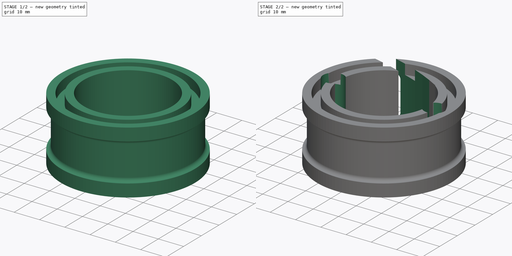
[diagram: build sequence overview — one tinted view per stage of 2, left to right]
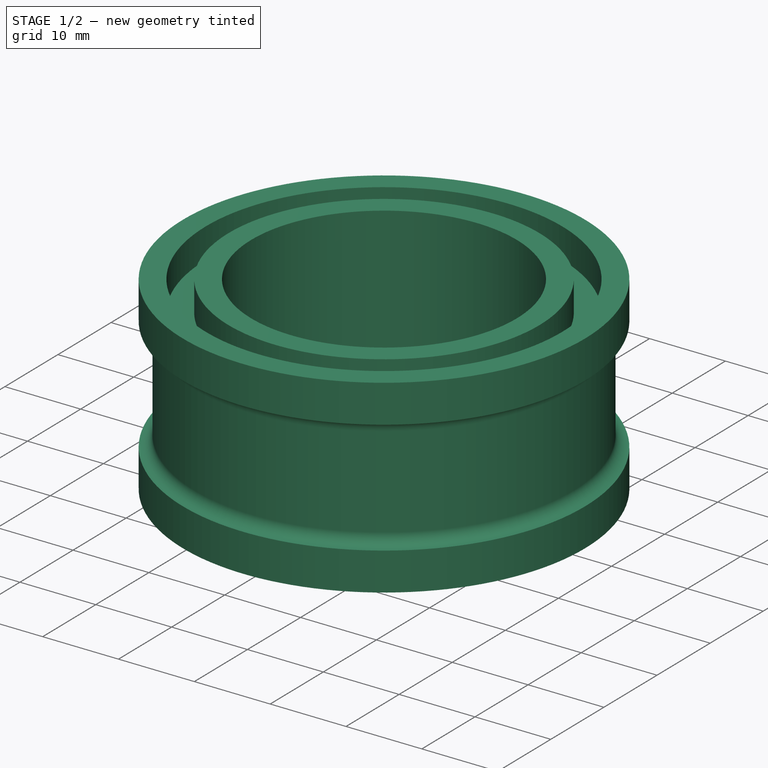
[diagram: stage 1 of 2 — iso view after this stage's code; geometry added in this stage tinted green]
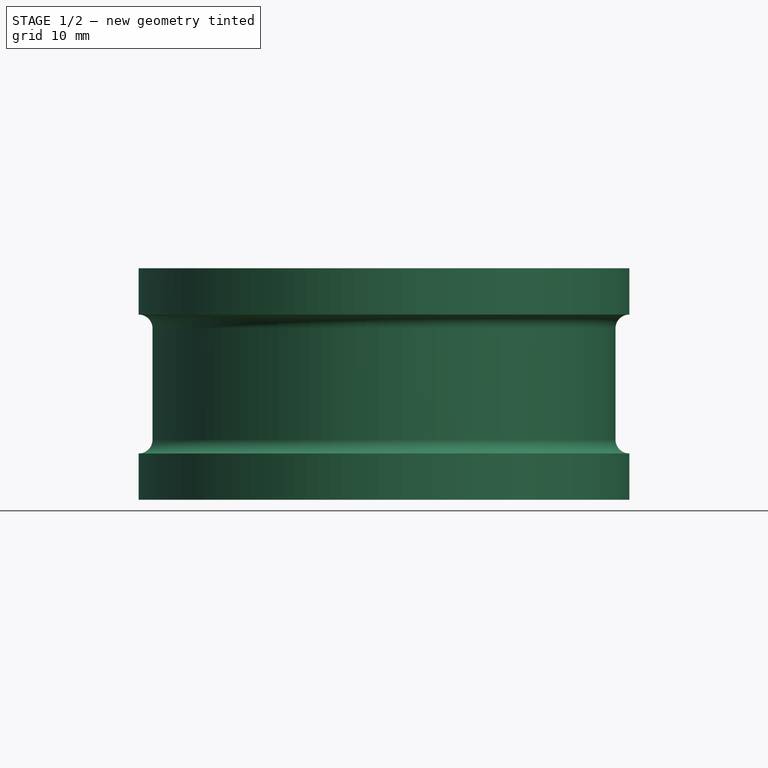
[diagram: stage 1 of 2 — front view after this stage's code; geometry added in this stage tinted green]
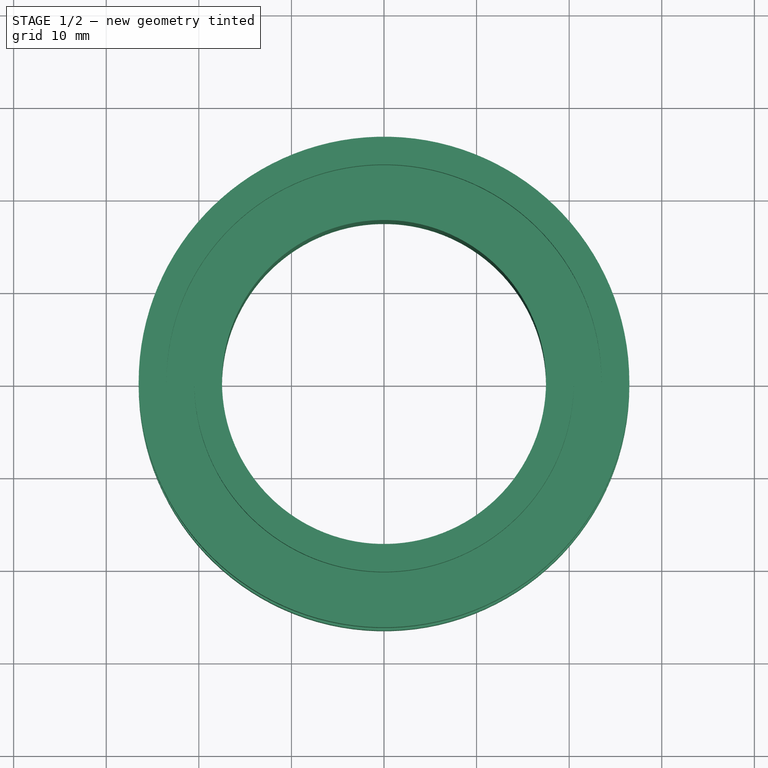
[diagram: stage 1 of 2 — top view after this stage's code; geometry added in this stage tinted green]
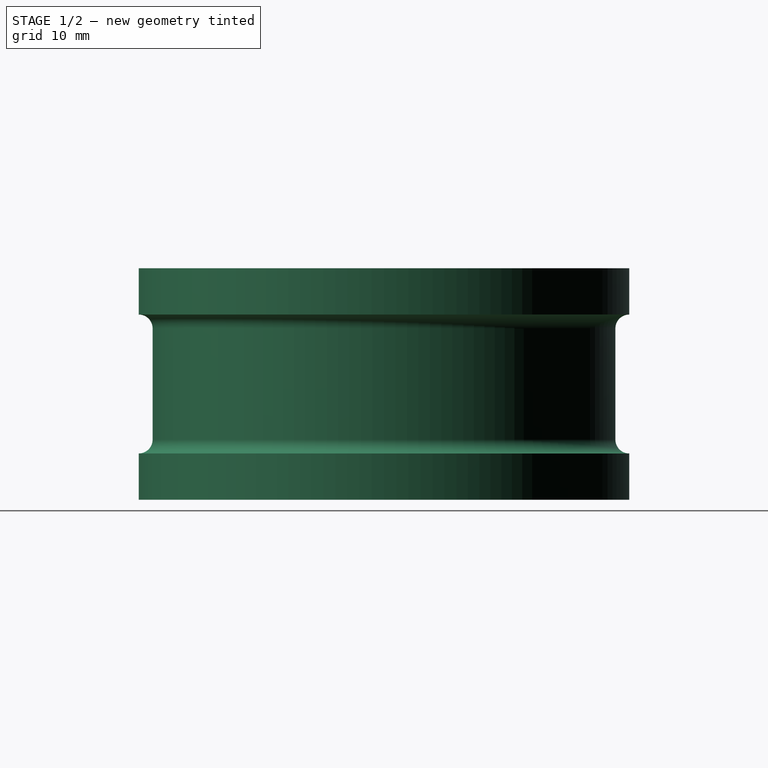
[diagram: stage 1 of 2 — right view after this stage's code; geometry added in this stage tinted green]
FCSTD DOCUMENT  (FreeCAD 1.0R38641 +468 (Git))
Label: stripholder
License: All rights reserved
LicenseURL: https://en.wikipedia.org/wiki/All_rights_reserved
objects: Sketcher::SketchObject×2, PartDesign::Revolution×1, PartDesign::Pocket×1, PartDesign::Body×1
note: 11 computed .brp shape members not serialized (recipe doc carries the construction recipe); baked Part::Feature solids carry a one-line shape summary decoded from their .brp

FEATURE [Sketcher::SketchObject] Sketch
  ArcFitTolerance = 0
  AttachmentSupport = -> [XZ_Plane]
  FullyConstrained = true
  MakeInternals = false
  MapMode = 5
  Placement = pos=(0,0,0) rot=(1,0,0;1.5708rad)
  expr: Constraints[45] = 53 / 2
  sketch-geometry (16):
    g0: LineSegment StartX=-17.5 StartY=0 StartZ=0 EndX=-17.5 EndY=25 EndZ=0
    g1: LineSegment StartX=-17.5 StartY=25 StartZ=0 EndX=-20.5 EndY=25 EndZ=0
    g2: LineSegment StartX=-20.5 StartY=25 StartZ=0 EndX=-20.5 EndY=21 EndZ=0
    g3: LineSegment StartX=-20.5 StartY=21 StartZ=0 EndX=-23.5 EndY=21 EndZ=0
    g4: LineSegment StartX=-23.5 StartY=21 StartZ=0 EndX=-23.5 EndY=25 EndZ=0
    g5: LineSegment StartX=-17.5 StartY=0 StartZ=0 EndX=-20.5 EndY=0 EndZ=0
    g6: LineSegment StartX=-20.5 StartY=0 StartZ=0 EndX=-20.5 EndY=4 EndZ=0
    g7: LineSegment StartX=-20.5 StartY=4 StartZ=0 EndX=-23.5 EndY=4 EndZ=0
    g8: LineSegment StartX=-23.5 StartY=4 StartZ=0 EndX=-23.5 EndY=0 EndZ=0
    g9: LineSegment StartX=-25 StartY=18.5 StartZ=0 EndX=-25 EndY=6.5 EndZ=0
    g10: ArcOfCircle CenterX=-26.5 CenterY=6.5 CenterZ=0 NormalX=0 NormalY=0 NormalZ=1 AngleXU=0 Radius=1.5 StartAngle=4.71239 EndAngle=6.28319
    g11: ArcOfCircle CenterX=-26.5 CenterY=18.5 CenterZ=0 NormalX=0 NormalY=0 NormalZ=1 AngleXU=0 Radius=1.5 StartAngle=0 EndAngle=1.5708
    g12: LineSegment StartX=-23.5 StartY=0 StartZ=0 EndX=-26.5 EndY=0 EndZ=0
    g13: LineSegment StartX=-26.5 StartY=0 StartZ=0 EndX=-26.5 EndY=5 EndZ=0
    g14: LineSegment StartX=-23.5 StartY=25 StartZ=0 EndX=-26.5 EndY=25 EndZ=0
    g15: LineSegment StartX=-26.5 StartY=25 StartZ=0 EndX=-26.5 EndY=20 EndZ=0
  constraints (50):
    c: PointOnObject(g0,g-1)
    c: Vertical(g0)
    c: Coincident(g1,g0)
    c: Horizontal(g1)
    c: Coincident(g2,g1)
    c: Vertical(g2)
    c: Horizontal(g3)
    c: Coincident(g5,g0)
    c: PointOnObject(g5,g-1)
    c: Coincident(g6,g5)
    c: Vertical(g6)
    c: Horizontal(g7)
    c: Vertical(g8)
    c: Vertical(g9)
    c: Coincident(g10,g9)
    c: Vertical(g7,g3)
    c: Vertical(g8,g4)
    c: Coincident(g4,g3)
    c: Vertical(g3,g4)
    c: Horizontal(g4,g1)
    c: DistanceX(g7,g7) = 3
    c: Coincident(g7,g6)
    c: Coincident(g2,g3)
    c: Coincident(g8,g7)
    c: DistanceY(g6,g6) = 4
    c: Equal(g6,g2)
    c: DistanceX(g1,g1) = 3
    c: DistanceY(g9,g9) = 12
    c: Diameter(g10) = 3
    c: Horizontal(g9,g10)
    c: Coincident(g11,g9)
    c: Horizontal(g11,g9)
    c: Vertical(g11,g11)
    c: Vertical(g11,g10)
    c: Vertical(g10,g10)
    c: Coincident(g12,g8)
    c: Horizontal(g12)
    c: Coincident(g13,g12)
    c: Coincident(g13,g10)
    c: Vertical(g13)
    c: Coincident(g14,g4)
    c: Horizontal(g14)
    c: Coincident(g15,g11)
    c: Vertical(g11,g15)
    c: Coincident(g15,g14)
    c: DistanceX(g12,g-1) = 26.5
    c: DistanceX(g14,g4) = 3
    c: DistanceY(g0,g0) = 25
    c: Equal(g15,g13)
    c: Horizontal(g8,g5)
FEATURE [PartDesign::Revolution] Revolution
  Angle = 360
  Angle2 = 60
  Axis = (0,2e-16,1)
  Base = (0,0,0)
  Placement = pos=(0,0,0) rot=(1,0,0;1.5708rad)
  Profile = -> Sketch
  ReferenceAxis = -> Sketch [V_Axis]
  Suppressed = false
  Type = 0
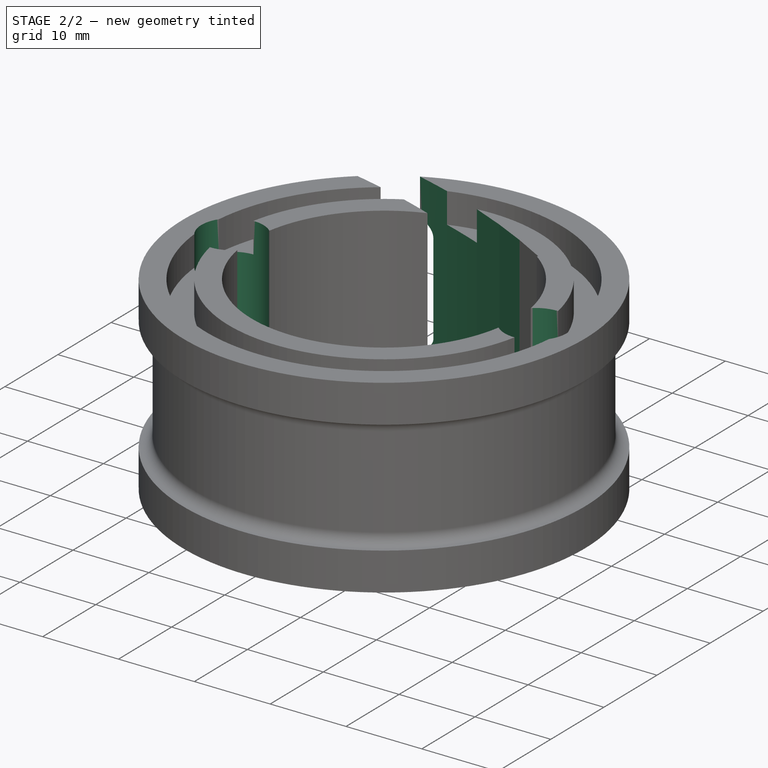
[diagram: stage 2 of 2 — iso view after this stage's code; geometry added in this stage tinted green]
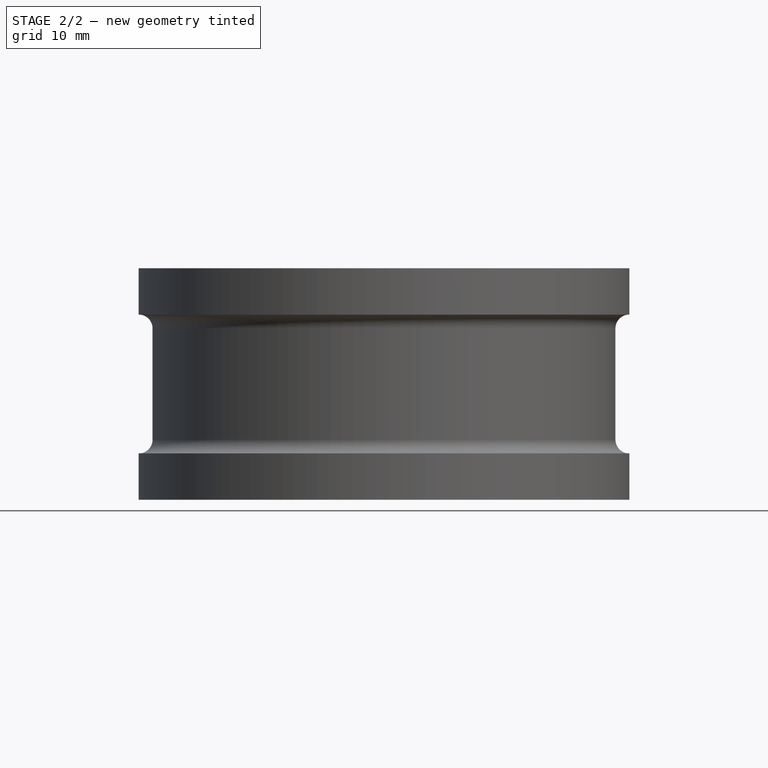
[diagram: stage 2 of 2 — front view after this stage's code; geometry added in this stage tinted green]
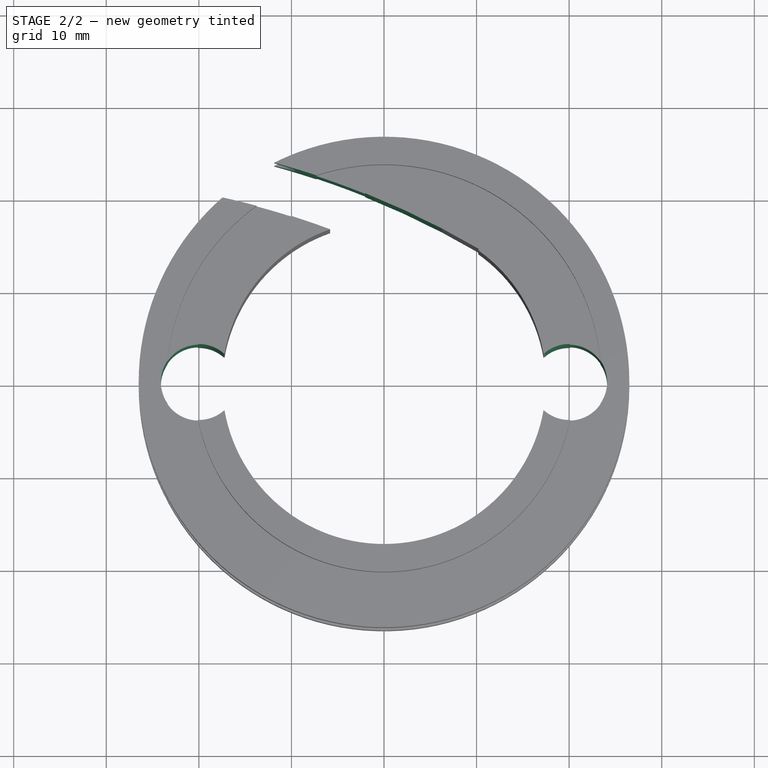
[diagram: stage 2 of 2 — top view after this stage's code; geometry added in this stage tinted green]
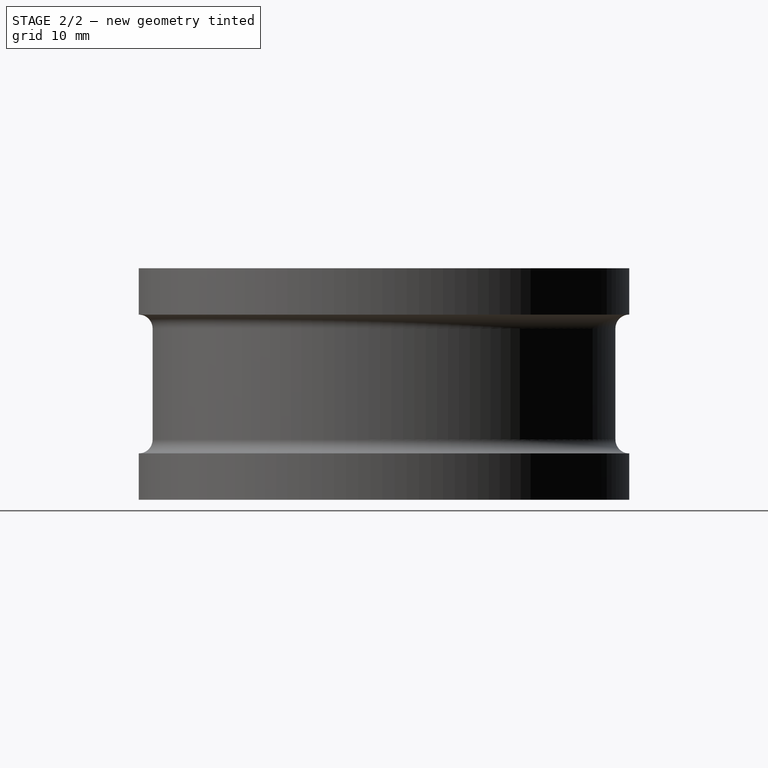
[diagram: stage 2 of 2 — right view after this stage's code; geometry added in this stage tinted green]
FEATURE [Sketcher::SketchObject] Sketch001
  ArcFitTolerance = 0
  AttachmentSupport = -> [Revolution]
  FullyConstrained = true
  MakeInternals = false
  MapMode = 5
  Placement = pos=(0,0,0) rot=(1,0,0;3.14159rad)
  sketch-geometry (6):
    g0: Circle CenterX=20 CenterY=0 CenterZ=0 NormalX=0 NormalY=0 NormalZ=1 AngleXU=0 Radius=4.1
    g1: Circle CenterX=-20 CenterY=0 CenterZ=0 NormalX=0 NormalY=0 NormalZ=1 AngleXU=0 Radius=4.1
    g2: ArcOfCircle CenterX=-36.26 CenterY=65 CenterZ=0 NormalX=0 NormalY=0 NormalZ=1 AngleXU=0 Radius=87 StartAngle=4.89957 EndAngle=5.24253
    g3: ArcOfCircle CenterX=-36.26 CenterY=65 CenterZ=0 NormalX=0 NormalY=0 NormalZ=1 AngleXU=0 Radius=92 StartAngle=4.89957 EndAngle=5.24253
    g4: LineSegment StartX=-20.0704 StartY=-20.4804 StartZ=0 EndX=-19.14 EndY=-25.3931 EndZ=0
    g5: LineSegment StartX=10.26 StartY=-14.3718 StartZ=0 EndX=7.73174 EndY=-10.0582 EndZ=0
  constraints (18):
    c: PointOnObject(g0,g-1)
    c: Symmetric(g1,g0,g-1)
    c: DistanceX(g1,g0) = 40
    c: Diameter(g0) = 8.2
    c: Equal(g0,g1)
    c: Radius(g2) = 87
    c: DistanceY(g-1,g2) = 65
    c: DistanceX(g2) = -36.26
    c: Coincident(g3,g2)
    c: Coincident(g4,g2)
    c: Coincident(g4,g3)
    c: Coincident(g5,g3)
    c: Coincident(g5,g2)
    c: Perpendicular(g2,g4)
    c: Perpendicular(g2,g5)
    c: Radius(g3) = 92
    c: DistanceX(g3,g-1) = 19.14
    c: DistanceX(g-1,g3) = 10.26
FEATURE [PartDesign::Pocket] Pocket
  BaseFeature = -> Revolution
  Direction = (0,0,1)
  Length = 5
  Length2 = 5
  Placement = pos=(0,0,0) rot=(1,0,0;1.5708rad)
  Profile = -> Sketch001
  ReferenceAxis = -> Sketch001 [N_Axis]
  Suppressed = false
  Type = 1
FEATURE [PartDesign::Body] Body  label="Körper"
  AllowCompound = false
  Group = -> [Sketch,Revolution,Sketch001,Pocket]
  Origin = -> Origin
  Tip = -> Pocket
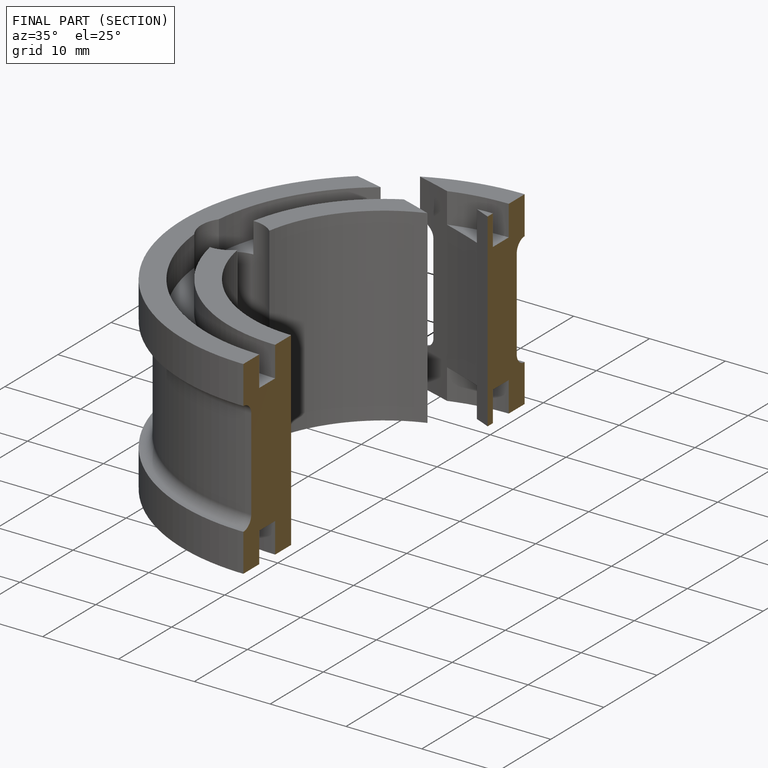
[diagram: finished part — half-section view (interior)]
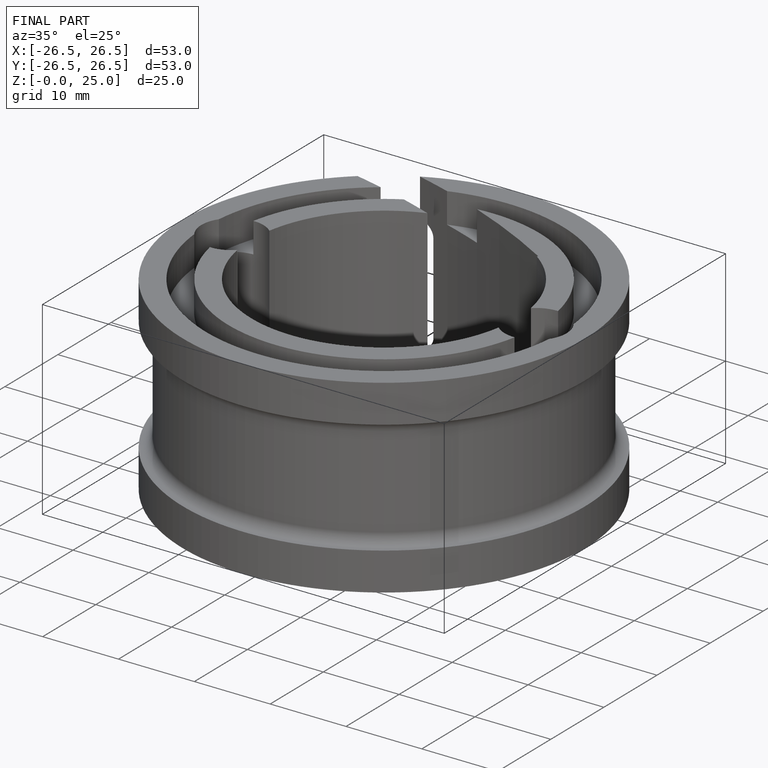
[diagram: finished part — iso view with bounding-box wireframe]
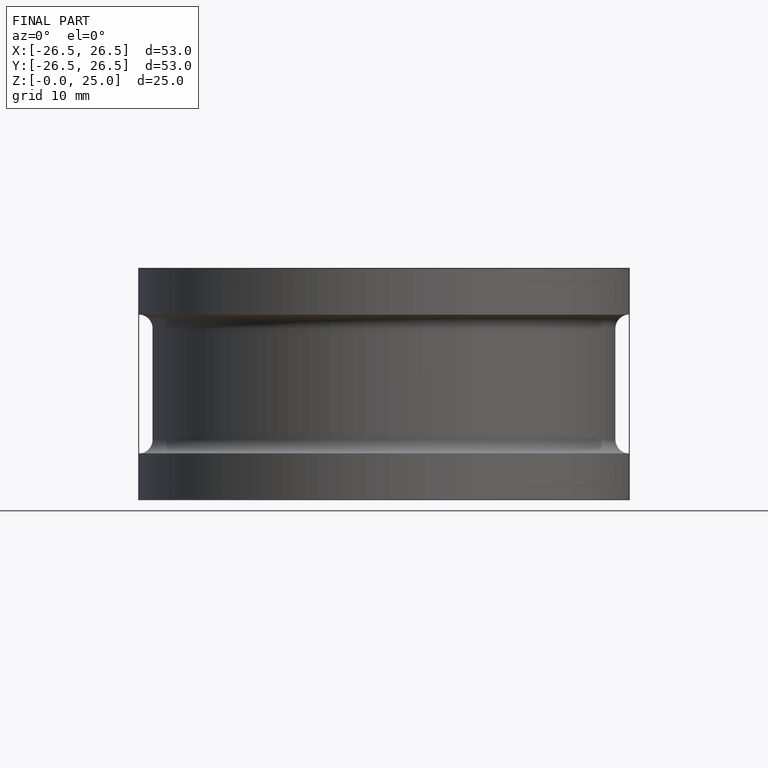
[diagram: finished part — front view with bounding-box wireframe]
